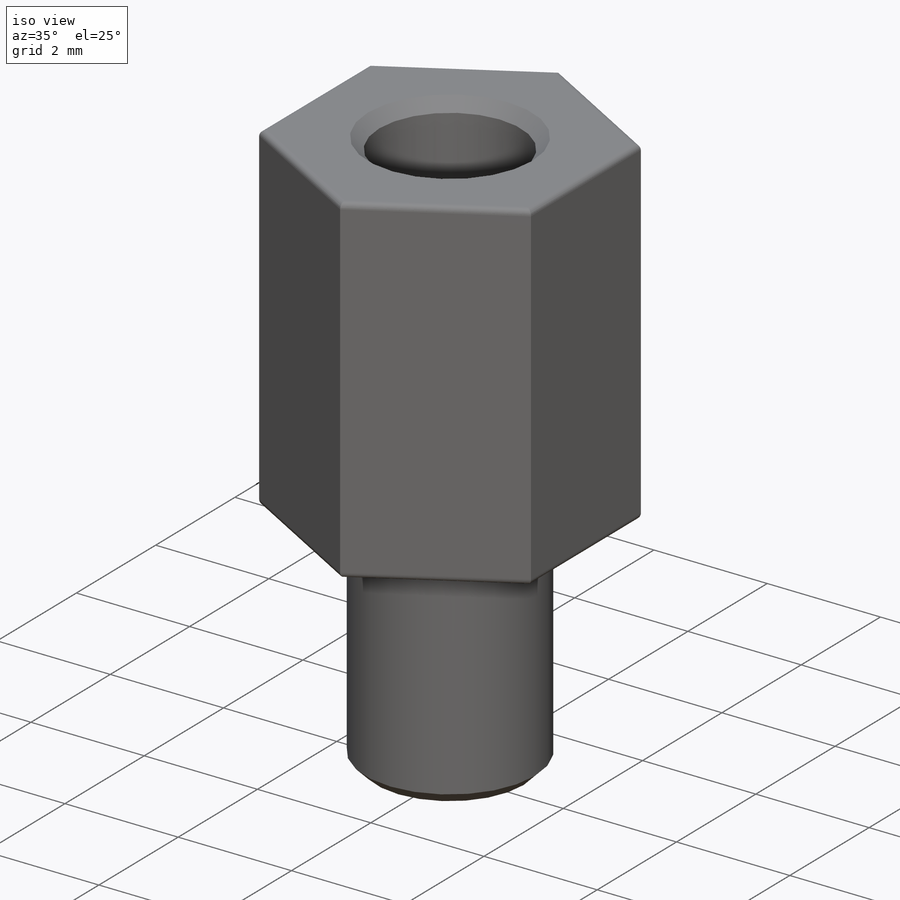
[diagram: iso view]
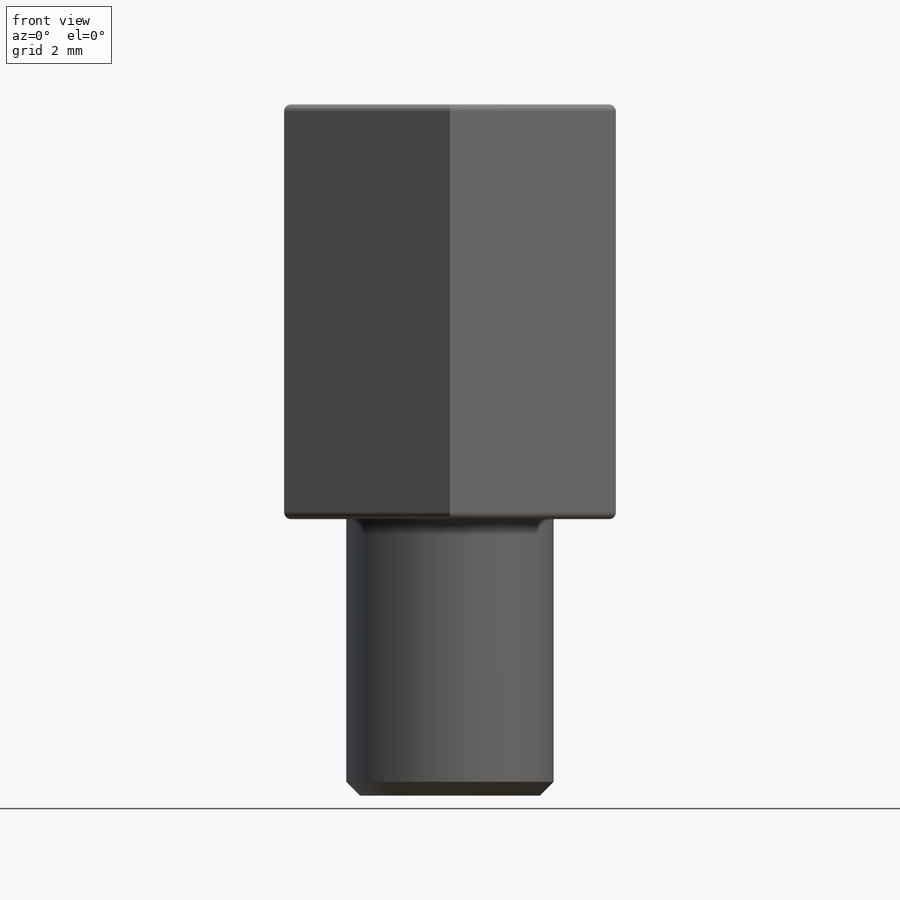
[diagram: front view]
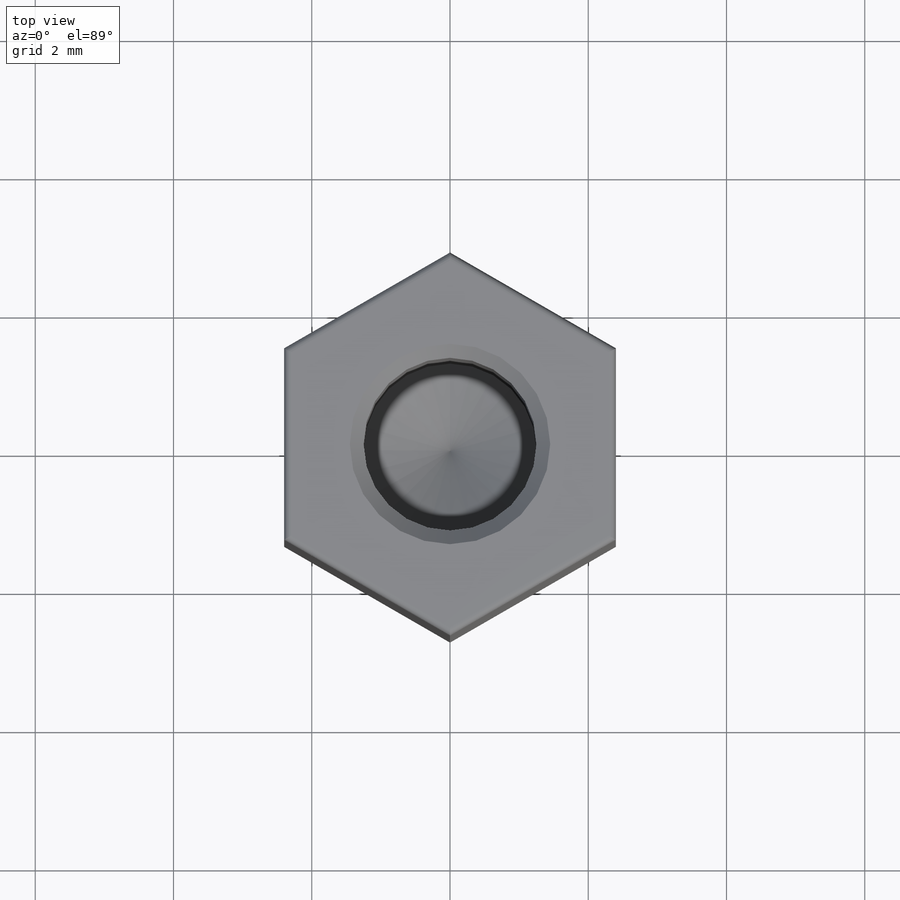
[diagram: top view]
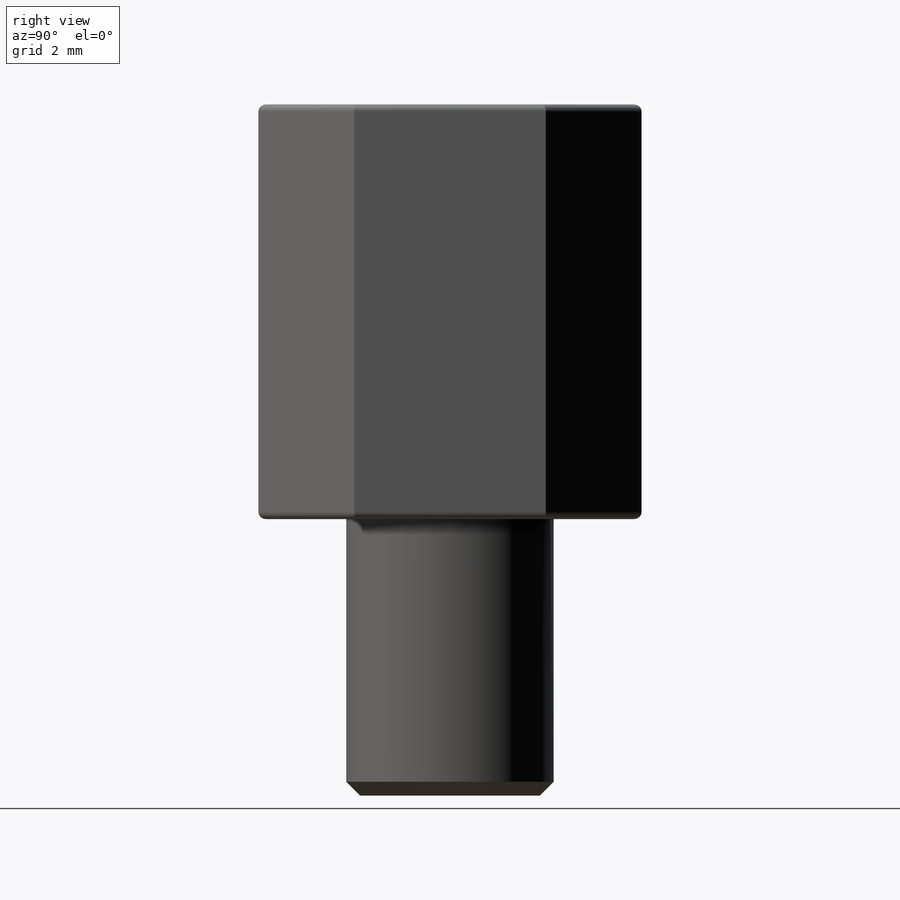
[diagram: right view]
SOLIDWORKS PART (.sldprt)
format: sldprt  version: not decoded by parser v0  size: 299,520 bytes
history: native  units: mm
features: plane x3, sketch x2, extrude x2, hole x2, material x1, thread x1, fillet x1, chamfer x1 + 3 further entries (+8 scaffold rows collapsed)
feature tree (24):
  scaffold x8  (default folders/planes/origin — collapsed)
  material  "Материал <не указан>"
  plane  "Спереди"
  plane  "Сверху"
  plane  "Справа"
  sketch  "Эскиз2"  dims[D1=3.0mm]
  extrude  "Бобышка-Вытянуть1"  [1 undecoded]
  thread  "Условное изображение резьбы1"  Diameter=4mm  [1 undecoded]
  "Эскиз3"
  extrude  "Бобышка-Вытянуть2"  Depth=6mm
  fillet  "Скругление1"  Radius=0.1mm
  "Эскиз4"
  hole  "Отверстие обработанное метчиком M31"  [1 undecoded]
  sketch  "Трехмерный эскиз1"
  "Эскиз5"  4=25.4mm Диаметр сверла=2.5mm Глубина сверла=5mm Угол заточки сверла=118deg
  hole  "Отверстие резьбы1"  Diameter=5mm
  chamfer  "Фаска2"  Distance=0.2mm Angle=45deg
decode coverage: 6 of 9 modeling features carry decoded parameters; 3 rows unclassified (native names shown)
note: 3 parameter values undecoded
note: suppression state not decoded; provenance and decode notes live in map.json
